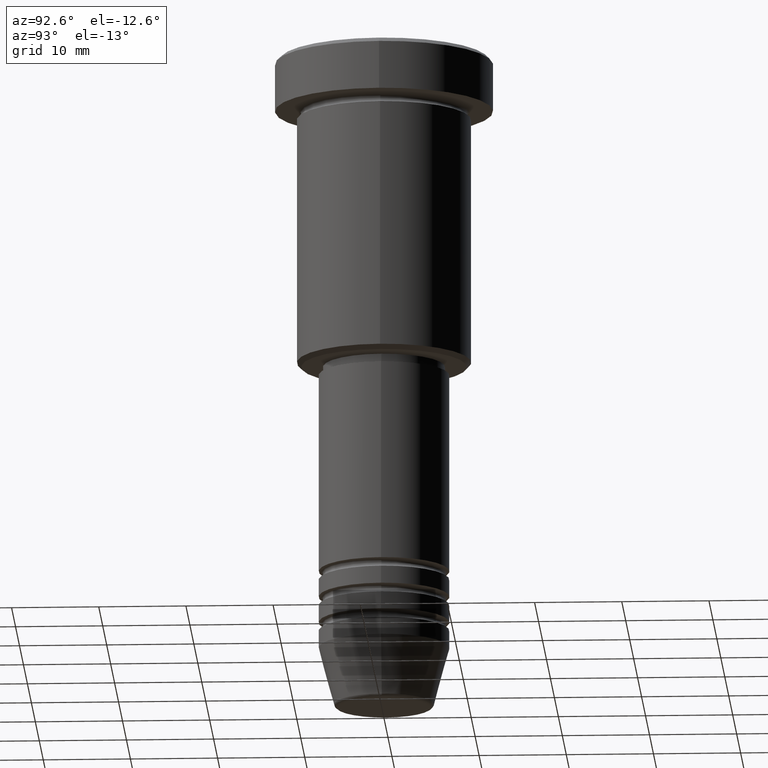
[diagram: clean part render]
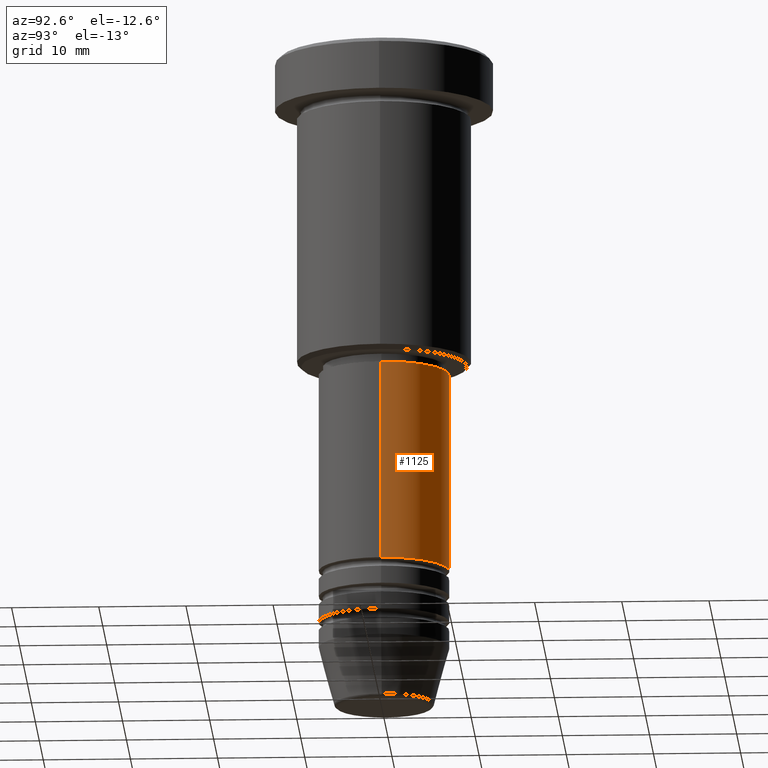
[diagram: same view with one face highlighted and labeled with its STEP entity id]
A machine part, auxiliary view. The second image highlights one B-rep face of the part: STEP entity #1125.
In plain terms, the highlighted cylindrical surface (partial cylindrical patch) has radius 7.5 mm, axis along (-0, -0, 1).
Its self-contained STEP definition (entity closure, byte-faithful):
#27 = CARTESIAN_POINT ( 'NONE',  ( 7.500000000000000000, 0.000000000000000000, -59.99999999999998579 ) ) ;
#73 = CARTESIAN_POINT ( 'NONE',  ( 7.500000000000000000, 0.000000000000000000, -37.00000000000000711 ) ) ;
#88 = DIRECTION ( 'NONE',  ( -0.000000000000000000, -0.000000000000000000, 1.000000000000000000 ) ) ;
#122 = VECTOR ( 'NONE', #344, 1000.000000000000000 ) ;
#137 = CARTESIAN_POINT ( 'NONE',  ( -7.500000000000000000, 9.184850993605147944E-16, -59.99999999999998579 ) ) ;
#144 = CARTESIAN_POINT ( 'NONE',  ( 0.000000000000000000, 0.000000000000000000, -59.99999999999998579 ) ) ;
#174 = FACE_OUTER_BOUND ( 'NONE', #1127, .T. ) ;
#202 = VERTEX_POINT ( 'NONE', #73 ) ;
#219 = ORIENTED_EDGE ( 'NONE', *, *, #251, .F. ) ;
#221 = EDGE_CURVE ( 'NONE', #574, #1063, #883, .T. ) ;
#245 = AXIS2_PLACEMENT_3D ( 'NONE', #904, #88, #1078 ) ;
#251 = EDGE_CURVE ( 'NONE', #776, #202, #509, .T. ) ;
#260 = CARTESIAN_POINT ( 'NONE',  ( -7.500000000000000000, 9.184850993605147944E-16, 0.000000000000000000 ) ) ;
#314 = DIRECTION ( 'NONE',  ( 1.000000000000000000, 0.000000000000000000, 0.000000000000000000 ) ) ;
#326 = EDGE_CURVE ( 'NONE', #776, #574, #851, .T. ) ;
#344 = DIRECTION ( 'NONE',  ( -0.000000000000000000, -0.000000000000000000, 1.000000000000000000 ) ) ;
#368 = AXIS2_PLACEMENT_3D ( 'NONE', #144, #872, #886 ) ;
#396 = ORIENTED_EDGE ( 'NONE', *, *, #221, .T. ) ;
#456 = CARTESIAN_POINT ( 'NONE',  ( -7.500000000000000000, 9.184850993605147944E-16, -37.00000000000000711 ) ) ;
#490 = DIRECTION ( 'NONE',  ( -0.000000000000000000, -0.000000000000000000, 1.000000000000000000 ) ) ;
#501 = VECTOR ( 'NONE', #532, 1000.000000000000000 ) ;
#509 = LINE ( 'NONE', #704, #501 ) ;
#527 = CIRCLE ( 'NONE', #673, 7.500000000000000000 ) ;
#532 = DIRECTION ( 'NONE',  ( -0.000000000000000000, -0.000000000000000000, 1.000000000000000000 ) ) ;
#538 = CYLINDRICAL_SURFACE ( 'NONE', #245, 7.500000000000000000 ) ;
#574 = VERTEX_POINT ( 'NONE', #137 ) ;
#673 = AXIS2_PLACEMENT_3D ( 'NONE', #943, #490, #314 ) ;
#704 = CARTESIAN_POINT ( 'NONE',  ( 7.500000000000000000, 0.000000000000000000, 0.000000000000000000 ) ) ;
#734 = ORIENTED_EDGE ( 'NONE', *, *, #801, .F. ) ;
#776 = VERTEX_POINT ( 'NONE', #27 ) ;
#801 = EDGE_CURVE ( 'NONE', #202, #1063, #527, .T. ) ;
#851 = CIRCLE ( 'NONE', #368, 7.500000000000000000 ) ;
#872 = DIRECTION ( 'NONE',  ( -0.000000000000000000, -0.000000000000000000, 1.000000000000000000 ) ) ;
#883 = LINE ( 'NONE', #260, #122 ) ;
#886 = DIRECTION ( 'NONE',  ( 1.000000000000000000, 0.000000000000000000, 0.000000000000000000 ) ) ;
#904 = CARTESIAN_POINT ( 'NONE',  ( 0.000000000000000000, 0.000000000000000000, 0.000000000000000000 ) ) ;
#920 = ORIENTED_EDGE ( 'NONE', *, *, #326, .T. ) ;
#943 = CARTESIAN_POINT ( 'NONE',  ( 0.000000000000000000, 0.000000000000000000, -37.00000000000000711 ) ) ;
#1063 = VERTEX_POINT ( 'NONE', #456 ) ;
#1078 = DIRECTION ( 'NONE',  ( 1.000000000000000000, 0.000000000000000000, 0.000000000000000000 ) ) ;
#1125 = ADVANCED_FACE ( 'NONE', ( #174 ), #538, .T. ) ;
#1127 = EDGE_LOOP ( 'NONE', ( #920, #396, #734, #219 ) ) ;